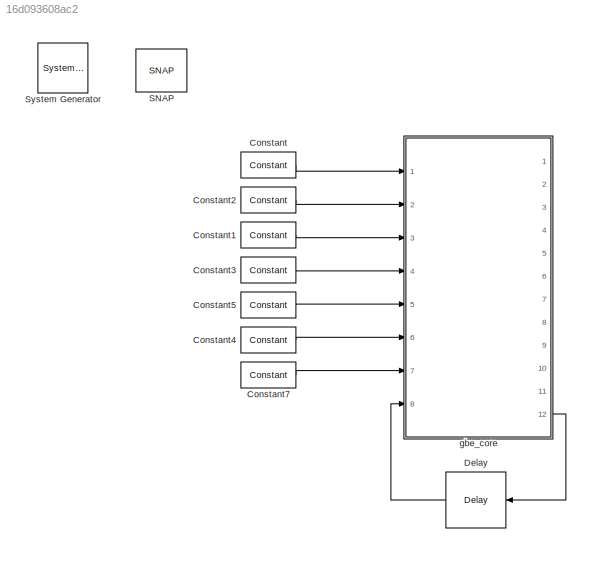
MODEL slx_16d093608ac2
KIND model
CONFIG AbsTol = auto
CONFIG EnableMultiTasking = off
CONFIG FixedStep = auto
CONFIG MaxStep = auto
CONFIG MinStep = auto
CONFIG RelTol = 1e-3
CONFIG SampleTimeConstraint = Unconstrained
CONFIG Solver = VariableStepDiscrete
CONFIG SolverName = VariableStepDiscrete
CONFIG StartTime = 0.0
CONFIG StopTime = 10.0
BLOCK [Reference]  System Generator  REF=xbsIndex_r4/ System Generator
  AttributesFormatString = System\nGenerator
  Ports = []
  SourceBlock = xbsIndex_r4/ System Generator
  SourceType = Xilinx System Generator Block
  Tag = genX
  UserDataPersistent = on
BLOCK [Reference] Constant  REF=xbsIndex_r4/Constant
  Ports = [0, 1]
  SourceBlock = xbsIndex_r4/Constant
  SourceType = Xilinx Constant Block Block
BLOCK [Reference] Constant1  REF=xbsIndex_r4/Constant
  Ports = [0, 1]
  SourceBlock = xbsIndex_r4/Constant
  SourceType = Xilinx Constant Block Block
BLOCK [Reference] Constant2  REF=xbsIndex_r4/Constant
  Ports = [0, 1]
  SourceBlock = xbsIndex_r4/Constant
  SourceType = Xilinx Constant Block Block
BLOCK [Reference] Constant3  REF=xbsIndex_r4/Constant
  Ports = [0, 1]
  SourceBlock = xbsIndex_r4/Constant
  SourceType = Xilinx Constant Block Block
BLOCK [Reference] Constant4  REF=xbsIndex_r4/Constant
  Ports = [0, 1]
  SourceBlock = xbsIndex_r4/Constant
  SourceType = Xilinx Constant Block Block
BLOCK [Reference] Constant5  REF=xbsIndex_r4/Constant
  Ports = [0, 1]
  SourceBlock = xbsIndex_r4/Constant
  SourceType = Xilinx Constant Block Block
BLOCK [Reference] Constant7  REF=xbsIndex_r4/Constant
  Ports = [0, 1]
  SourceBlock = xbsIndex_r4/Constant
  SourceType = Xilinx Constant Block Block
BLOCK [Reference] Delay  REF=xbsIndex_r4/Delay
  Ports = [1, 1]
  SourceBlock = xbsIndex_r4/Delay
  SourceType = Xilinx Delay Block
BLOCK [Reference] SNAP  REF=xps_library/Platforms/SNAP  (lib defined in mdl_00b5cec29cd0, mdl_02ab6ecaa3d1, +5 more)
  Ports = []
  SourceBlock = xps_library/Platforms/SNAP
  SourceProductName = CASPER XPS Blockset
  SourceType = xsg core config
  Tag = xps:xsg
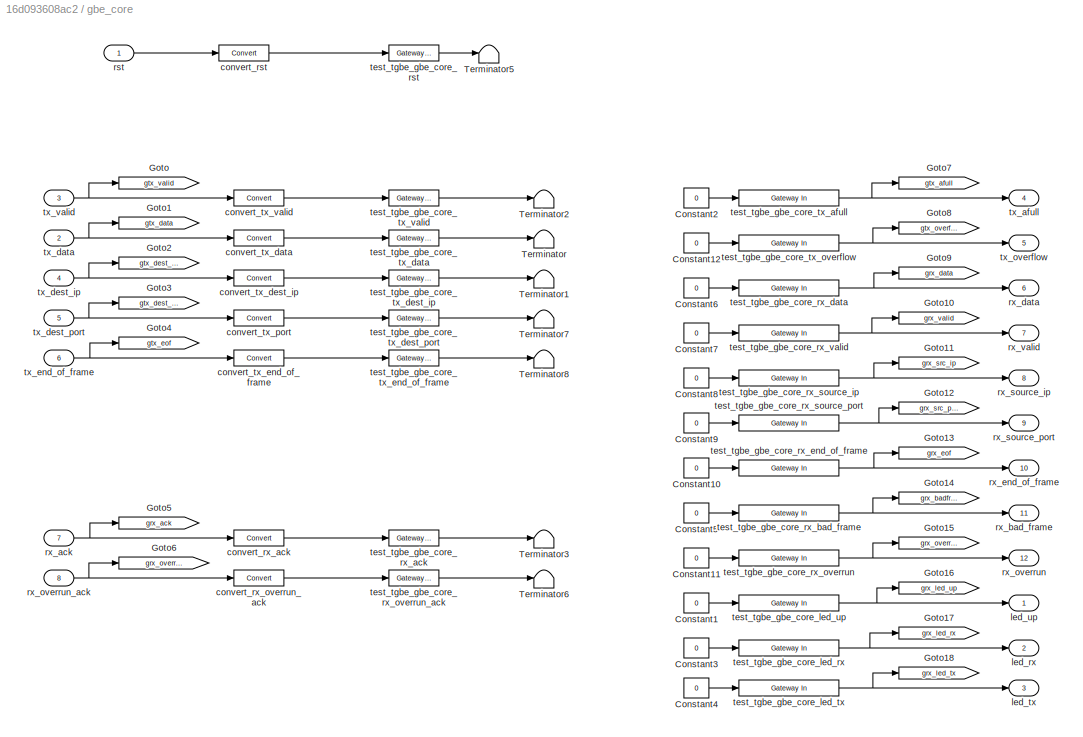
BLOCK [SubSystem] gbe_core
  AncestorBlock = xps_library/IO/ten_gbe
  Ports = [8, 12]
  RequestExecContextInheritance = off
  Tag = xps:ten_gbe
BLOCK [Constant] gbe_core/Constant1
  Value = 0
BLOCK [Constant] gbe_core/Constant10
  Value = 0
BLOCK [Constant] gbe_core/Constant11
  Value = 0
BLOCK [Constant] gbe_core/Constant12
  Value = 0
BLOCK [Constant] gbe_core/Constant2
  Value = 0
BLOCK [Constant] gbe_core/Constant3
  Value = 0
BLOCK [Constant] gbe_core/Constant4
  Value = 0
BLOCK [Constant] gbe_core/Constant5
  Value = 0
BLOCK [Constant] gbe_core/Constant6
  Value = 0
BLOCK [Constant] gbe_core/Constant7
  Value = 0
BLOCK [Constant] gbe_core/Constant8
  Value = 0
BLOCK [Constant] gbe_core/Constant9
  Value = 0
BLOCK [Goto] gbe_core/Goto
  GotoTag = gtx_valid
BLOCK [Goto] gbe_core/Goto1
  GotoTag = gtx_data
BLOCK [Goto] gbe_core/Goto10
  GotoTag = grx_valid
BLOCK [Goto] gbe_core/Goto11
  GotoTag = grx_src_ip
BLOCK [Goto] gbe_core/Goto12
  GotoTag = grx_src_port
BLOCK [Goto] gbe_core/Goto13
  GotoTag = grx_eof
BLOCK [Goto] gbe_core/Goto14
  GotoTag = grx_badframe
BLOCK [Goto] gbe_core/Goto15
  GotoTag = grx_overrun
BLOCK [Goto] gbe_core/Goto16
  GotoTag = grx_led_up
BLOCK [Goto] gbe_core/Goto17
  GotoTag = grx_led_rx
BLOCK [Goto] gbe_core/Goto18
  GotoTag = grx_led_tx
BLOCK [Goto] gbe_core/Goto2
  GotoTag = gtx_dest_ip
BLOCK [Goto] gbe_core/Goto3
  GotoTag = gtx_dest_port
BLOCK [Goto] gbe_core/Goto4
  GotoTag = gtx_eof
BLOCK [Goto] gbe_core/Goto5
  GotoTag = grx_ack
BLOCK [Goto] gbe_core/Goto6
  GotoTag = grx_overrun_ack
BLOCK [Goto] gbe_core/Goto7
  GotoTag = gtx_afull
BLOCK [Goto] gbe_core/Goto8
  GotoTag = gtx_overflow
BLOCK [Goto] gbe_core/Goto9
  GotoTag = grx_data
BLOCK [Terminator] gbe_core/Terminator
BLOCK [Terminator] gbe_core/Terminator1
BLOCK [Terminator] gbe_core/Terminator2
BLOCK [Terminator] gbe_core/Terminator3
BLOCK [Terminator] gbe_core/Terminator5
BLOCK [Terminator] gbe_core/Terminator6
BLOCK [Terminator] gbe_core/Terminator7
BLOCK [Terminator] gbe_core/Terminator8
BLOCK [Reference] gbe_core/convert_rst  REF=xbsIndex_r4/Convert
  Ports = [1, 1]
  SourceBlock = xbsIndex_r4/Convert
  SourceType = Xilinx Type Converter Block
BLOCK [Reference] gbe_core/convert_rx_ack  REF=xbsIndex_r4/Convert
  Ports = [1, 1]
  SourceBlock = xbsIndex_r4/Convert
  SourceType = Xilinx Type Converter Block
BLOCK [Reference] gbe_core/convert_rx_overrun_ack  REF=xbsIndex_r4/Convert
  Ports = [1, 1]
  SourceBlock = xbsIndex_r4/Convert
  SourceType = Xilinx Type Converter Block
BLOCK [Reference] gbe_core/convert_tx_data  REF=xbsIndex_r4/Convert
  Ports = [1, 1]
  SourceBlock = xbsIndex_r4/Convert
  SourceType = Xilinx Type Converter Block
BLOCK [Reference] gbe_core/convert_tx_dest_ip  REF=xbsIndex_r4/Convert
  Ports = [1, 1]
  SourceBlock = xbsIndex_r4/Convert
  SourceType = Xilinx Type Converter Block
BLOCK [Reference] gbe_core/convert_tx_end_of_frame  REF=xbsIndex_r4/Convert
  Ports = [1, 1]
  SourceBlock = xbsIndex_r4/Convert
  SourceType = Xilinx Type Converter Block
BLOCK [Reference] gbe_core/convert_tx_port  REF=xbsIndex_r4/Convert
  Ports = [1, 1]
  SourceBlock = xbsIndex_r4/Convert
  SourceType = Xilinx Type Converter Block
BLOCK [Reference] gbe_core/convert_tx_valid  REF=xbsIndex_r4/Convert
  Ports = [1, 1]
  SourceBlock = xbsIndex_r4/Convert
  SourceType = Xilinx Type Converter Block
BLOCK [Outport] gbe_core/led_rx
  IconDisplay = Port number
  Port = 2
BLOCK [Outport] gbe_core/led_tx
  IconDisplay = Port number
  Port = 3
BLOCK [Outport] gbe_core/led_up
  IconDisplay = Port number
BLOCK [Inport] gbe_core/rst
  IconDisplay = Port number
BLOCK [Inport] gbe_core/rx_ack
  IconDisplay = Port number
  Port = 7
BLOCK [Outport] gbe_core/rx_bad_frame
  IconDisplay = Port number
  Port = 11
BLOCK [Outport] gbe_core/rx_data
  IconDisplay = Port number
  Port = 6
BLOCK [Outport] gbe_core/rx_end_of_frame
  IconDisplay = Port number
  Port = 10
BLOCK [Outport] gbe_core/rx_overrun
  IconDisplay = Port number
  Port = 12
BLOCK [Inport] gbe_core/rx_overrun_ack
  IconDisplay = Port number
  Port = 8
BLOCK [Outport] gbe_core/rx_source_ip
  IconDisplay = Port number
  Port = 8
BLOCK [Outport] gbe_core/rx_source_port
  IconDisplay = Port number
  Port = 9
BLOCK [Outport] gbe_core/rx_valid
  IconDisplay = Port number
  Port = 7
BLOCK [Reference] gbe_core/test_tgbe_gbe_core_led_rx  REF=xbsIndex_r4/Gateway In
  Ports = [1, 1]
  SourceBlock = xbsIndex_r4/Gateway In
  SourceType = Xilinx Gateway In Block
BLOCK [Reference] gbe_core/test_tgbe_gbe_core_led_tx  REF=xbsIndex_r4/Gateway In
  Ports = [1, 1]
  SourceBlock = xbsIndex_r4/Gateway In
  SourceType = Xilinx Gateway In Block
BLOCK [Reference] gbe_core/test_tgbe_gbe_core_led_up  REF=xbsIndex_r4/Gateway In
  Ports = [1, 1]
  SourceBlock = xbsIndex_r4/Gateway In
  SourceType = Xilinx Gateway In Block
BLOCK [Reference] gbe_core/test_tgbe_gbe_core_rst  REF=xbsIndex_r4/Gateway Out
  Ports = [1, 1]
  SourceBlock = xbsIndex_r4/Gateway Out
  SourceType = Xilinx Gateway Out Block
BLOCK [Reference] gbe_core/test_tgbe_gbe_core_rx_ack  REF=xbsIndex_r4/Gateway Out
  Ports = [1, 1]
  SourceBlock = xbsIndex_r4/Gateway Out
  SourceType = Xilinx Gateway Out Block
BLOCK [Reference] gbe_core/test_tgbe_gbe_core_rx_bad_frame  REF=xbsIndex_r4/Gateway In
  Ports = [1, 1]
  SourceBlock = xbsIndex_r4/Gateway In
  SourceType = Xilinx Gateway In Block
BLOCK [Reference] gbe_core/test_tgbe_gbe_core_rx_data  REF=xbsIndex_r4/Gateway In
  Ports = [1, 1]
  SourceBlock = xbsIndex_r4/Gateway In
  SourceType = Xilinx Gateway In Block
BLOCK [Reference] gbe_core/test_tgbe_gbe_core_rx_end_of_frame  REF=xbsIndex_r4/Gateway In
  Ports = [1, 1]
  SourceBlock = xbsIndex_r4/Gateway In
  SourceType = Xilinx Gateway In Block
BLOCK [Reference] gbe_core/test_tgbe_gbe_core_rx_overrun  REF=xbsIndex_r4/Gateway In
  Ports = [1, 1]
  SourceBlock = xbsIndex_r4/Gateway In
  SourceType = Xilinx Gateway In Block
BLOCK [Reference] gbe_core/test_tgbe_gbe_core_rx_overrun_ack  REF=xbsIndex_r4/Gateway Out
  Ports = [1, 1]
  SourceBlock = xbsIndex_r4/Gateway Out
  SourceType = Xilinx Gateway Out Block
BLOCK [Reference] gbe_core/test_tgbe_gbe_core_rx_source_ip  REF=xbsIndex_r4/Gateway In
  Ports = [1, 1]
  SourceBlock = xbsIndex_r4/Gateway In
  SourceType = Xilinx Gateway In Block
BLOCK [Reference] gbe_core/test_tgbe_gbe_core_rx_source_port  REF=xbsIndex_r4/Gateway In
  Ports = [1, 1]
  SourceBlock = xbsIndex_r4/Gateway In
  SourceType = Xilinx Gateway In Block
BLOCK [Reference] gbe_core/test_tgbe_gbe_core_rx_valid  REF=xbsIndex_r4/Gateway In
  Ports = [1, 1]
  SourceBlock = xbsIndex_r4/Gateway In
  SourceType = Xilinx Gateway In Block
BLOCK [Reference] gbe_core/test_tgbe_gbe_core_tx_afull  REF=xbsIndex_r4/Gateway In
  Ports = [1, 1]
  SourceBlock = xbsIndex_r4/Gateway In
  SourceType = Xilinx Gateway In Block
BLOCK [Reference] gbe_core/test_tgbe_gbe_core_tx_data  REF=xbsIndex_r4/Gateway Out
  Ports = [1, 1]
  SourceBlock = xbsIndex_r4/Gateway Out
  SourceType = Xilinx Gateway Out Block
BLOCK [Reference] gbe_core/test_tgbe_gbe_core_tx_dest_ip  REF=xbsIndex_r4/Gateway Out
  Ports = [1, 1]
  SourceBlock = xbsIndex_r4/Gateway Out
  SourceType = Xilinx Gateway Out Block
BLOCK [Reference] gbe_core/test_tgbe_gbe_core_tx_dest_port  REF=xbsIndex_r4/Gateway Out
  Ports = [1, 1]
  SourceBlock = xbsIndex_r4/Gateway Out
  SourceType = Xilinx Gateway Out Block
BLOCK [Reference] gbe_core/test_tgbe_gbe_core_tx_end_of_frame  REF=xbsIndex_r4/Gateway Out
  Ports = [1, 1]
  SourceBlock = xbsIndex_r4/Gateway Out
  SourceType = Xilinx Gateway Out Block
BLOCK [Reference] gbe_core/test_tgbe_gbe_core_tx_overflow  REF=xbsIndex_r4/Gateway In
  Ports = [1, 1]
  SourceBlock = xbsIndex_r4/Gateway In
  SourceType = Xilinx Gateway In Block
BLOCK [Reference] gbe_core/test_tgbe_gbe_core_tx_valid  REF=xbsIndex_r4/Gateway Out
  Ports = [1, 1]
  SourceBlock = xbsIndex_r4/Gateway Out
  SourceType = Xilinx Gateway Out Block
BLOCK [Outport] gbe_core/tx_afull
  IconDisplay = Port number
  Port = 4
BLOCK [Inport] gbe_core/tx_data
  IconDisplay = Port number
  Port = 2
BLOCK [Inport] gbe_core/tx_dest_ip
  IconDisplay = Port number
  Port = 4
BLOCK [Inport] gbe_core/tx_dest_port
  IconDisplay = Port number
  Port = 5
BLOCK [Inport] gbe_core/tx_end_of_frame
  IconDisplay = Port number
  Port = 6
BLOCK [Outport] gbe_core/tx_overflow
  IconDisplay = Port number
  Port = 5
BLOCK [Inport] gbe_core/tx_valid
  IconDisplay = Port number
  Port = 3
LINE Constant1:1 -> gbe_core:3
LINE Constant2:1 -> gbe_core:2
LINE Constant3:1 -> gbe_core:4
LINE Constant4:1 -> gbe_core:6
LINE Constant5:1 -> gbe_core:5
LINE Constant7:1 -> gbe_core:7
LINE Constant:1 -> gbe_core:1
LINE Delay:1 -> gbe_core:8
LINE gbe_core:12 -> Delay:1
